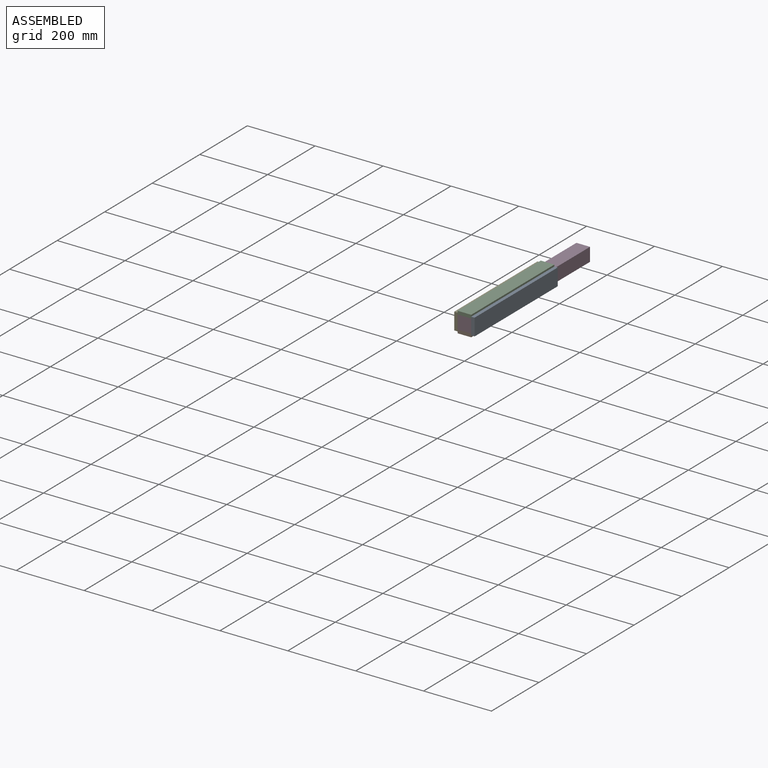
[diagram: assembled view]
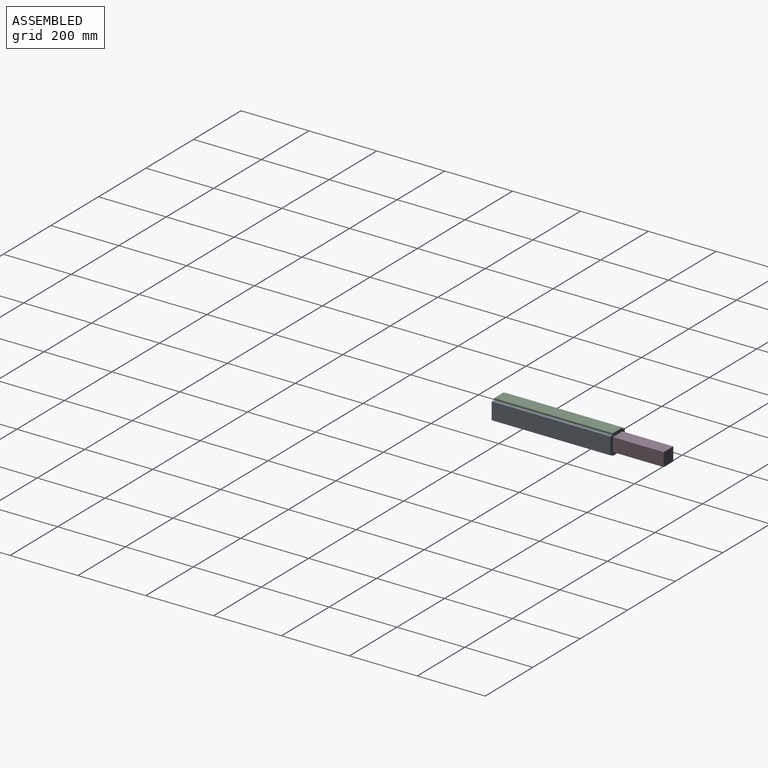
[diagram: assembled view, second angle]
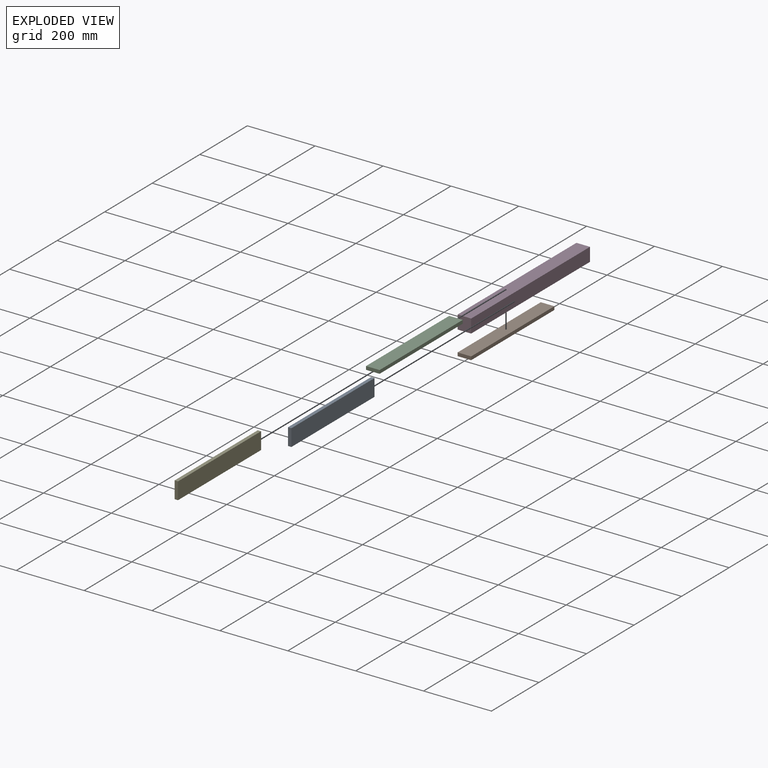
[diagram: exploded view]
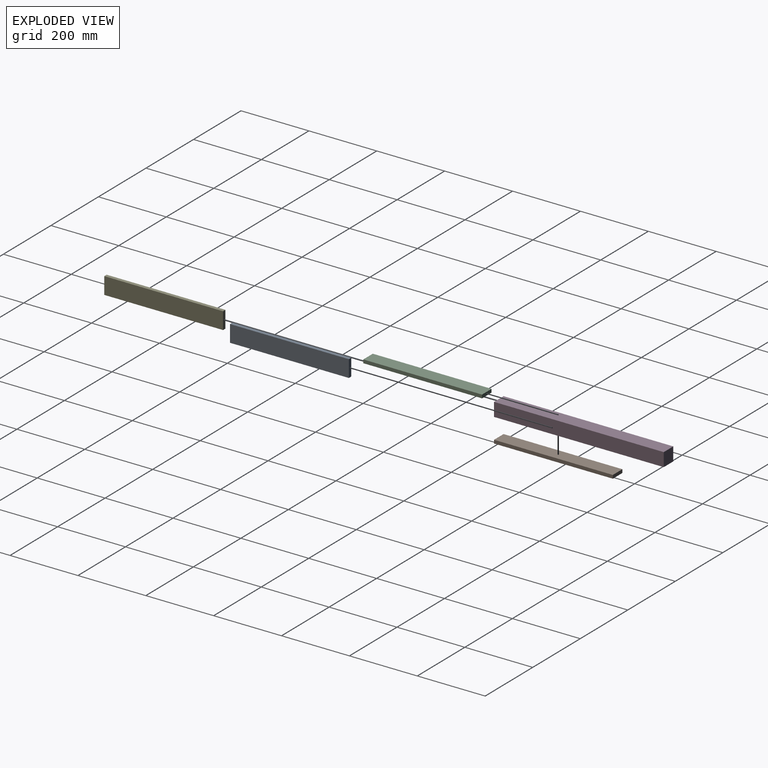
[diagram: exploded view, second angle]
ASSEMBLY  parts=5 mates=4
PART A: 6 faces, bbox 50x350x10 mm
  f0: plane 350x50mm, normal (0,0,1), area 17500mm2, adj f1,f3,f4,f5
  f1: plane 350x10mm, normal (-1,0,0), area 3500mm2, adj f0,f2,f4,f5
  f2: plane 350x50mm, normal (0,0,-1), area 17500mm2, adj f1,f3,f4,f5
  f3: plane 350x10mm, normal (1,0,0), area 3500mm2, adj f0,f2,f4,f5
  f4: plane 50x10mm, normal (0,1,0), area 500mm2, adj f0,f1,f2,f3
  f5: plane 50x10mm, normal (0,-1,0), area 500mm2, adj f0,f1,f2,f3
PART B: 6 faces, bbox 40x350x10 mm
  f0: plane 350x40mm, normal (0,0,1), area 14000mm2, adj f1,f3,f4,f5
  f1: plane 350x10mm, normal (-1,0,0), area 3500mm2, adj f0,f2,f4,f5
  f2: plane 350x40mm, normal (0,0,-1), area 14000mm2, adj f1,f3,f4,f5
  f3: plane 350x10mm, normal (1,0,0), area 3500mm2, adj f0,f2,f4,f5
  f4: plane 40x10mm, normal (0,1,0), area 400mm2, adj f0,f1,f2,f3
  f5: plane 40x10mm, normal (0,-1,0), area 400mm2, adj f0,f1,f2,f3
PART C: same geometry as B
PART D: 6 faces, bbox 40x500x40 mm
  f0: plane 500x40mm, normal (0,0,1), area 20000mm2, adj f1,f3,f4,f5
  f1: plane 500x40mm, normal (-1,0,0), area 20000mm2, adj f0,f2,f4,f5
  f2: plane 500x40mm, normal (0,0,-1), area 20000mm2, adj f1,f3,f4,f5
  f3: plane 500x40mm, normal (1,0,0), area 20000mm2, adj f0,f2,f4,f5
  f4: plane 40x40mm, normal (0,1,0), area 1600mm2, adj f0,f1,f2,f3
  f5: plane 40x40mm, normal (0,-1,0), area 1600mm2, adj f0,f1,f2,f3
PART E: same geometry as A
PLACE A rot(axis=(0,-1,0),90deg) t=(25,0,0)mm
PLACE B t=(0,0,-25)mm
PLACE C t=(0,0,25)mm
PLACE D at identity fixed
PLACE E rot(axis=(0,-1,0),90deg) t=(-25,0,0)mm
MATE fastened D.f5 <-> E.f5  axis (0,-1,0) through (-20,0,0)mm
MATE fastened D.f5 <-> C.f5  axis (0,-1,0) through (0,0,20)mm
MATE fastened D.f5 <-> B.f5  axis (0,-1,0) through (0,0,-20)mm
MATE fastened A.f5 <-> D.f5  axis (0,-1,0) through (20,0,0)mm
